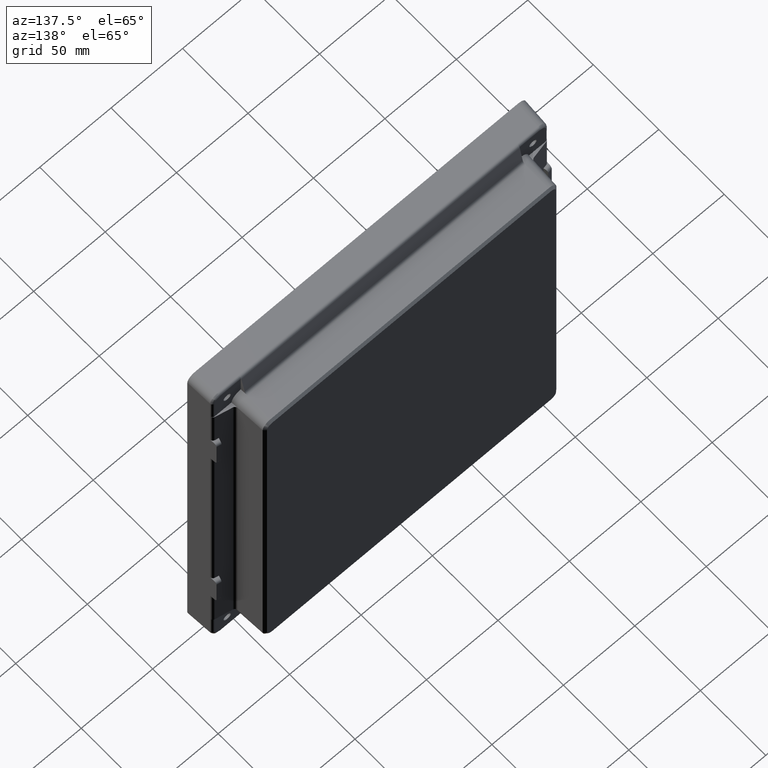
[diagram: clean part render]
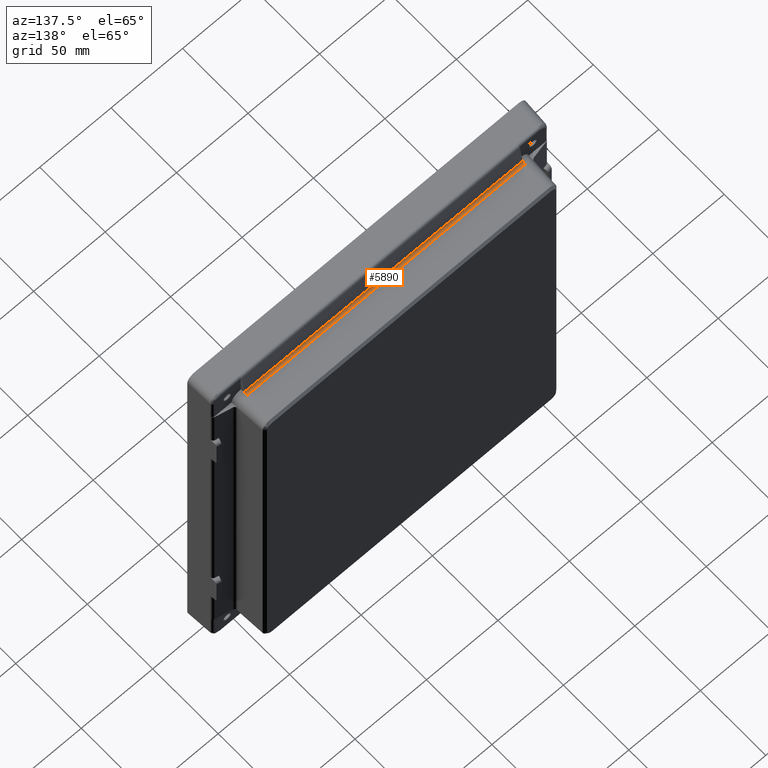
[diagram: same view with one face highlighted and labeled with its STEP entity id]
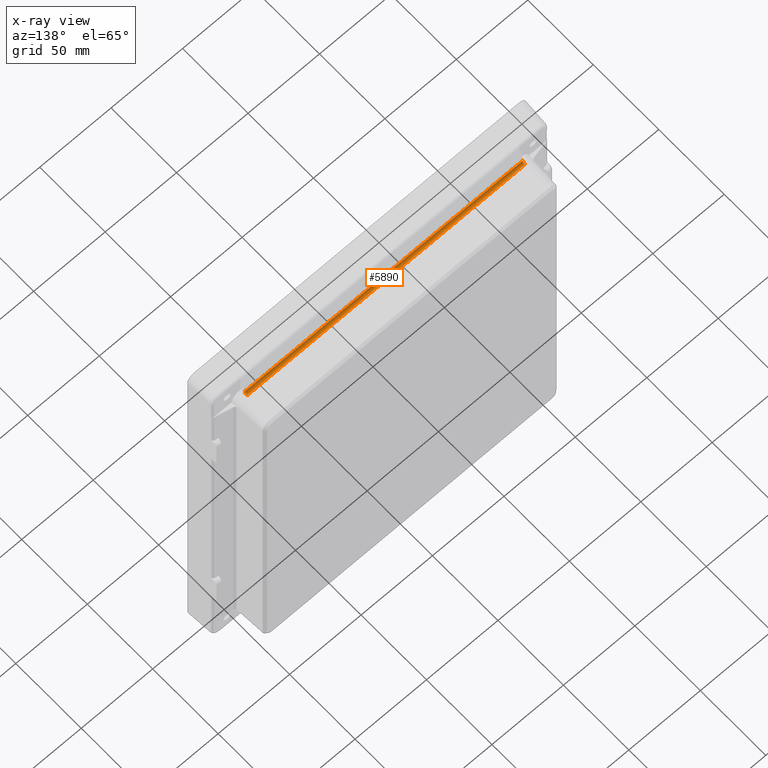
[diagram: x-ray of the same camera — body ghosted, the highlighted face saturated]
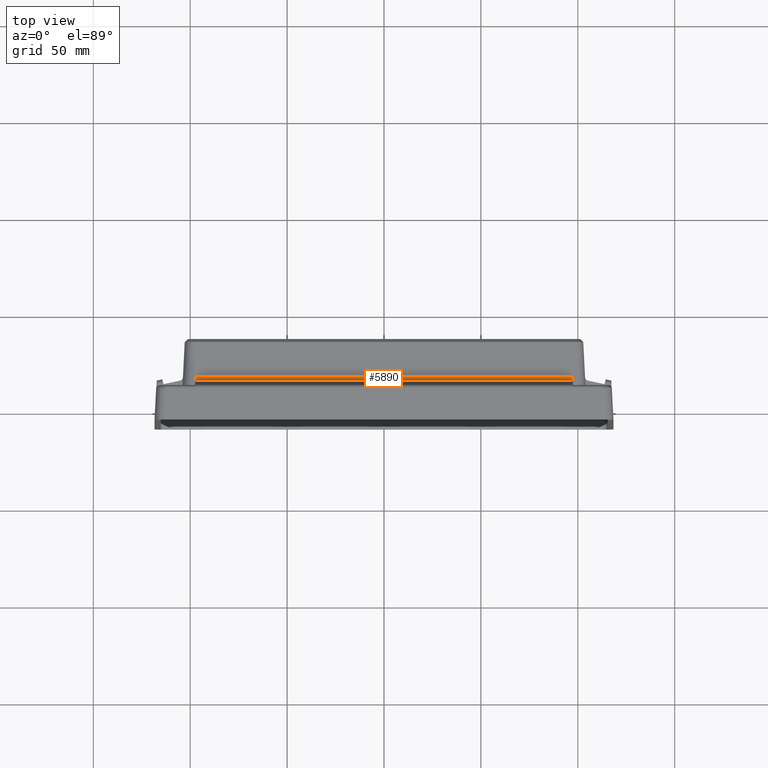
[diagram: same view with one face highlighted and labeled with its STEP entity id]
A machine part, auxiliary view. The second image highlights one B-rep face of the part: STEP entity #5890.
The next image is the same camera in x-ray: the body ghosted, the highlighted face saturated — about 0% of this face is hidden behind the body in this view.
A second angle (top view) of the same face is appended — the face is thin or edge-on in the first view.
In plain terms, the highlighted cylindrical surface (edge-blend (fillet) strip) has radius 2 mm, axis along (1, -0, 0).
Its self-contained STEP definition (entity closure, byte-faithful):
#308 = EDGE_CURVE ( 'NONE', #3300, #3813, #6386, .T. ) ;
#490 = CARTESIAN_POINT ( 'NONE',  ( 97.30938290335356600, 12.99343912853551700, 130.3928983521702500 ) ) ;
#569 = CARTESIAN_POINT ( 'NONE',  ( -97.30291835851898000, 12.79771748918624000, 131.3136962697293500 ) ) ;
#867 = EDGE_CURVE ( 'NONE', #3068, #6393, #6134, .T. ) ;
#1209 = ORIENTED_EDGE ( 'NONE', *, *, #5664, .F. ) ;
#1471 = CARTESIAN_POINT ( 'NONE',  ( 97.22260077518517100, 14.64934077816795700, 129.7322605818557100 ) ) ;
#1478 = CARTESIAN_POINT ( 'NONE',  ( 97.22260077518517100, 14.64934077816795700, 129.7322605818557100 ) ) ;
#1494 = CARTESIAN_POINT ( 'NONE',  ( 97.27186822672915400, 13.70926180100210500, 129.7815280333996700 ) ) ;
#1865 = EDGE_LOOP ( 'NONE', ( #6604, #6174, #1209, #2347 ) ) ;
#1892 = CARTESIAN_POINT ( 'NONE',  ( -97.22260077518519900, 14.64934077816796300, 129.7322605818557100 ) ) ;
#1915 =( BOUNDED_CURVE ( )  B_SPLINE_CURVE ( 3, ( #4999, #4516, #6568, #1892 ),
 .UNSPECIFIED., .F., .F. ) 
 B_SPLINE_CURVE_WITH_KNOTS ( ( 4, 4 ),
 ( 3.351032163829108500, 4.660029102824859500 ),
 .UNSPECIFIED. ) 
 CURVE ( )  GEOMETRIC_REPRESENTATION_ITEM ( )  RATIONAL_B_SPLINE_CURVE ( ( 1.000000000000000000, 0.8622355601941560400, 0.8622355601941560400, 1.000000000000000000 ) ) 
 REPRESENTATION_ITEM ( '' )  );
#1991 = CARTESIAN_POINT ( 'NONE',  ( 97.30291835851896600, 14.64934077816795700, 129.7322605818557100 ) ) ;
#2020 = DIRECTION ( 'NONE',  ( 1.000000000000000000, -2.539281907356389700E-017, 1.330781257381538500E-018 ) ) ;
#2347 = ORIENTED_EDGE ( 'NONE', *, *, #308, .F. ) ;
#2367 = EDGE_CURVE ( 'NONE', #6393, #3300, #3204, .T. ) ;
#2599 = AXIS2_PLACEMENT_3D ( 'NONE', #6142, #2020, #6119 ) ;
#2715 = CYLINDRICAL_SURFACE ( 'NONE', #2599, 2.000000000000001800 ) ;
#2994 = VECTOR ( 'NONE', #3619, 1000.000000000000000 ) ;
#3068 = VERTEX_POINT ( 'NONE', #5793 ) ;
#3204 =( BOUNDED_CURVE ( )  B_SPLINE_CURVE ( 3, ( #1478, #1494, #490, #4604 ),
 .UNSPECIFIED., .F., .F. ) 
 B_SPLINE_CURVE_WITH_KNOTS ( ( 4, 4 ),
 ( 4.764748857944519000, 6.073745796940270800 ),
 .UNSPECIFIED. ) 
 CURVE ( )  GEOMETRIC_REPRESENTATION_ITEM ( )  RATIONAL_B_SPLINE_CURVE ( ( 1.000000000000000000, 0.8622355601941557000, 0.8622355601941557000, 1.000000000000000000 ) ) 
 REPRESENTATION_ITEM ( '' )  );
#3300 = VERTEX_POINT ( 'NONE', #4936 ) ;
#3619 = DIRECTION ( 'NONE',  ( -1.000000000000000000, 2.539281907356389700E-017, -1.330781257381538800E-018 ) ) ;
#3813 = VERTEX_POINT ( 'NONE', #5309 ) ;
#4516 = CARTESIAN_POINT ( 'NONE',  ( -97.30938290335355100, 12.99343912853552800, 130.3928983521702500 ) ) ;
#4604 = CARTESIAN_POINT ( 'NONE',  ( 97.31964023982949600, 12.79771748918623500, 131.3136962697293500 ) ) ;
#4936 = CARTESIAN_POINT ( 'NONE',  ( 97.31964023982949600, 12.79771748918623500, 131.3136962697293500 ) ) ;
#4999 = CARTESIAN_POINT ( 'NONE',  ( -97.31964023982946800, 12.79771748918624000, 131.3136962697293500 ) ) ;
#5147 = DIRECTION ( 'NONE',  ( 1.000000000000000000, -2.539281907356389700E-017, 1.330781257381538300E-018 ) ) ;
#5309 = CARTESIAN_POINT ( 'NONE',  ( -97.31964023982946800, 12.79771748918624000, 131.3136962697293500 ) ) ;
#5664 = EDGE_CURVE ( 'NONE', #3813, #3068, #1915, .T. ) ;
#5733 = VECTOR ( 'NONE', #5147, 1000.000000000000000 ) ;
#5793 = CARTESIAN_POINT ( 'NONE',  ( -97.22260077518519900, 14.64934077816796300, 129.7322605818557100 ) ) ;
#5890 = ADVANCED_FACE ( 'NONE', ( #6105 ), #2715, .F. ) ;
#6105 = FACE_OUTER_BOUND ( 'NONE', #1865, .T. ) ;
#6119 = DIRECTION ( 'NONE',  ( 0.0000000000000000000, 1.000000000000000000, 0.0000000000000000000 ) ) ;
#6134 = LINE ( 'NONE', #1991, #5733 ) ;
#6142 = CARTESIAN_POINT ( 'NONE',  ( -117.4759222071695600, 14.75401269065385000, 131.7295196513648800 ) ) ;
#6174 = ORIENTED_EDGE ( 'NONE', *, *, #867, .F. ) ;
#6386 = LINE ( 'NONE', #569, #2994 ) ;
#6393 = VERTEX_POINT ( 'NONE', #1471 ) ;
#6568 = CARTESIAN_POINT ( 'NONE',  ( -97.27186822672912600, 13.70926180100211200, 129.7815280333996700 ) ) ;
#6604 = ORIENTED_EDGE ( 'NONE', *, *, #2367, .F. ) ;